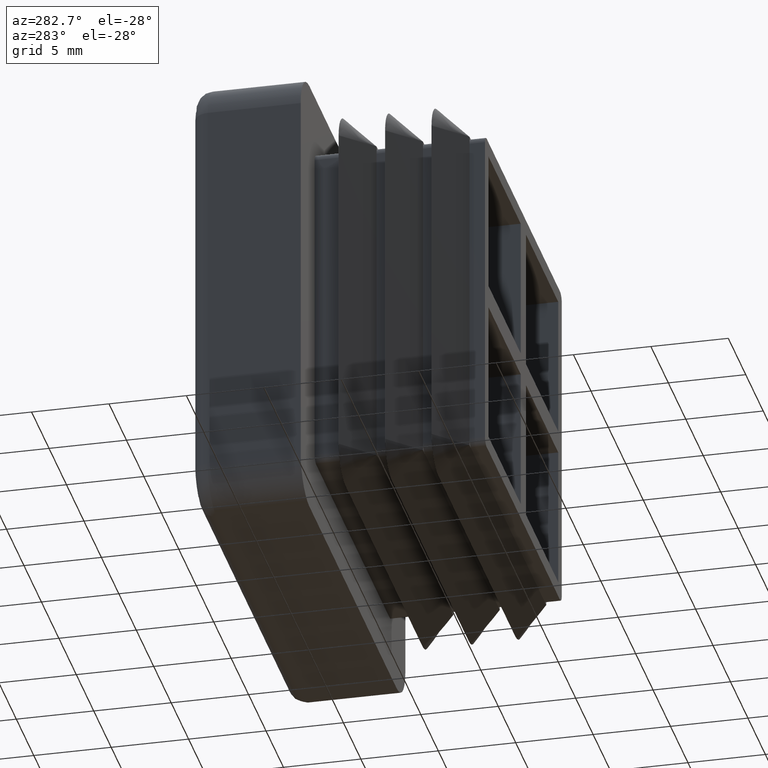
[diagram: clean part render]
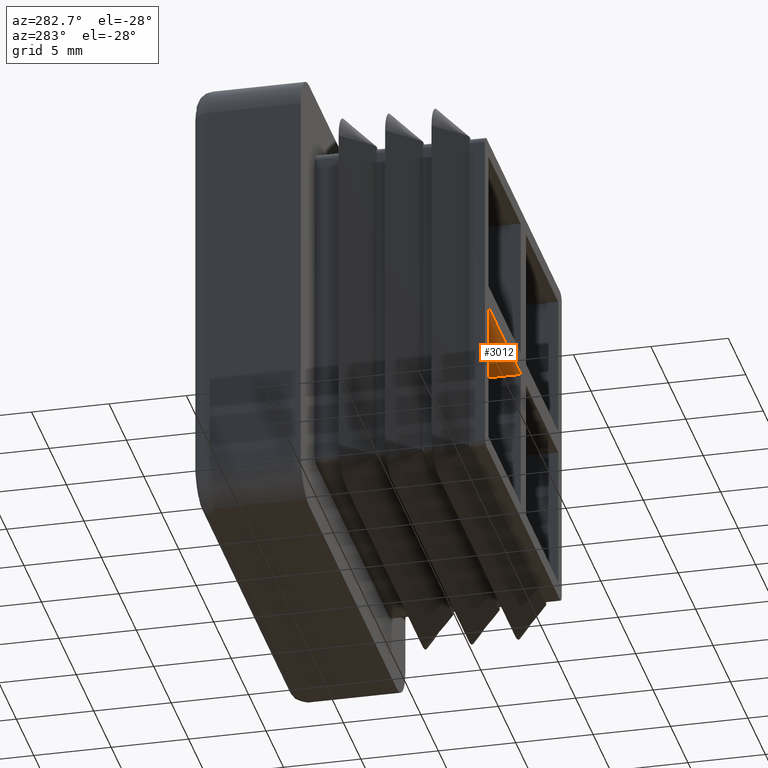
[diagram: same view with one face highlighted and labeled with its STEP entity id]
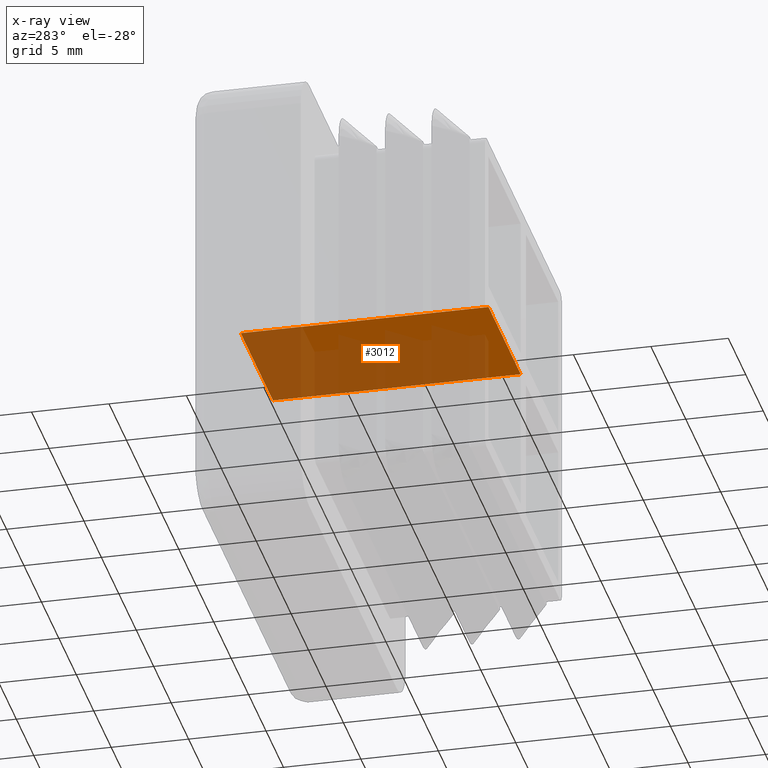
[diagram: x-ray of the same camera — body ghosted, the highlighted face saturated]
A machine part, auxiliary view. The second image highlights one B-rep face of the part: STEP entity #3012.
The next image is the same camera in x-ray: the body ghosted, the highlighted face saturated — about 71% of this face is hidden behind the body in this view.
In plain terms, the highlighted planar face has unit normal (0, 0, 1).
Its self-contained STEP definition (entity closure, byte-faithful):
#989=CARTESIAN_POINT('',(-10.000000000000007,0.0,-0.749999999999995));
#990=VERTEX_POINT('',#989);
#997=CARTESIAN_POINT('',(-0.750000000000004,0.0,-0.749999999999997));
#998=VERTEX_POINT('',#997);
#999=CARTESIAN_POINT('',(-10.000000000000007,0.0,-0.749999999999997));
#1000=DIRECTION('',(1.0,0.0,0.0));
#1001=VECTOR('',#1000,9.250000000000004);
#1002=LINE('',#999,#1001);
#1003=EDGE_CURVE('',#990,#998,#1002,.T.);
#2970=CARTESIAN_POINT('',(-0.750000000000004,16.0,-0.749999999999997));
#2971=VERTEX_POINT('',#2970);
#2980=CARTESIAN_POINT('',(-0.750000000000004,0.0,-0.749999999999997));
#2981=DIRECTION('',(0.0,1.0,0.0));
#2982=VECTOR('',#2981,16.0);
#2983=LINE('',#2980,#2982);
#2984=EDGE_CURVE('',#998,#2971,#2983,.T.);
#2989=CARTESIAN_POINT('',(-10.462500000000007,-0.800000000000000,-0.749999999999997));
#2990=DIRECTION('',(0.0,0.0,1.0));
#2991=DIRECTION('',(1.0,0.0,0.0));
#2992=AXIS2_PLACEMENT_3D('',#2989,#2990,#2991);
#2993=PLANE('',#2992);
#2994=CARTESIAN_POINT('',(-10.000000000000007,16.0,-0.749999999999997));
#2995=VERTEX_POINT('',#2994);
#2996=CARTESIAN_POINT('',(-10.000000000000007,16.0,-0.749999999999997));
#2997=DIRECTION('',(1.0,0.0,0.0));
#2998=VECTOR('',#2997,9.250000000000004);
#2999=LINE('',#2996,#2998);
#3000=EDGE_CURVE('',#2995,#2971,#2999,.T.);
#3001=ORIENTED_EDGE('',*,*,#3000,.T.);
#3002=ORIENTED_EDGE('',*,*,#2984,.F.);
#3003=ORIENTED_EDGE('',*,*,#1003,.F.);
#3004=CARTESIAN_POINT('',(-10.000000000000007,0.0,-0.749999999999997));
#3005=DIRECTION('',(0.0,1.0,0.0));
#3006=VECTOR('',#3005,16.0);
#3007=LINE('',#3004,#3006);
#3008=EDGE_CURVE('',#990,#2995,#3007,.T.);
#3009=ORIENTED_EDGE('',*,*,#3008,.T.);
#3010=EDGE_LOOP('',(#3001,#3002,#3003,#3009));
#3011=FACE_OUTER_BOUND('',#3010,.T.);
#3012=ADVANCED_FACE('',(#3011),#2993,.F.);